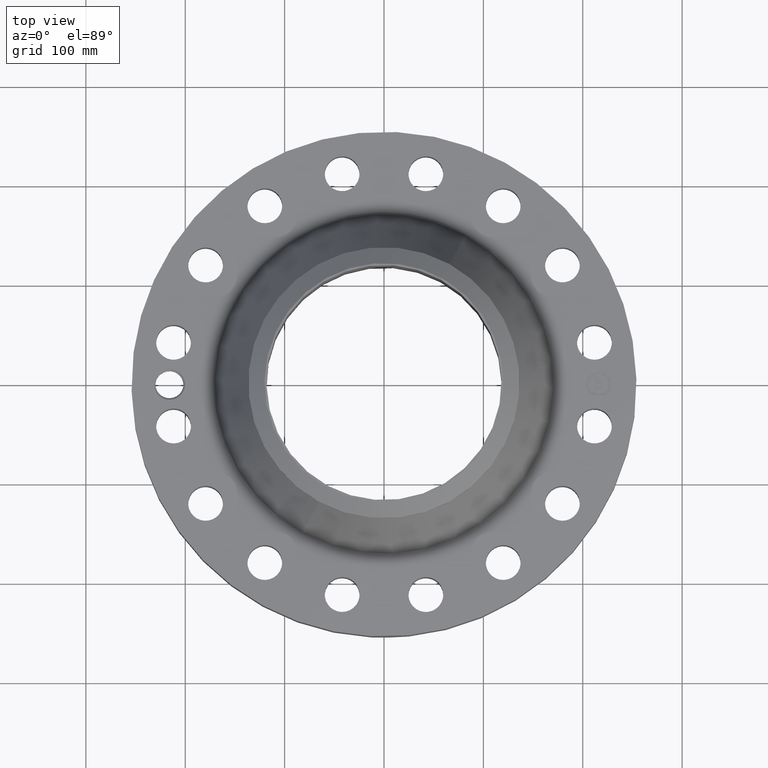
[diagram: clean part render]
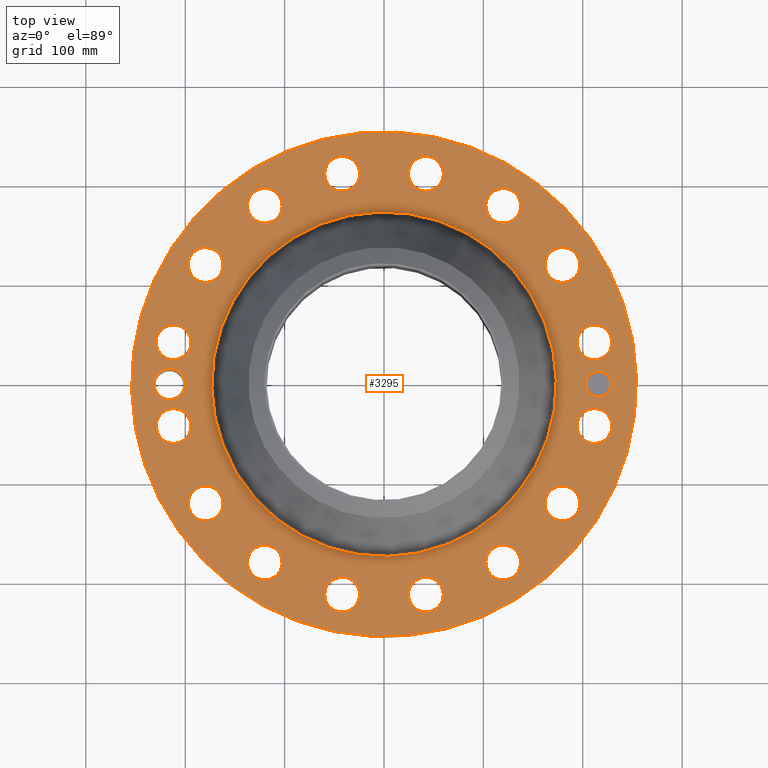
[diagram: same view with one face highlighted and labeled with its STEP entity id]
A machine part, top view. The second image highlights one B-rep face of the part: STEP entity #3295.
In plain terms, the highlighted planar face has unit normal (0, 0, -1).
Its self-contained STEP definition (entity closure, byte-faithful):
#2190=AXIS2_PLACEMENT_3D('Circle Axis2P3D',#2188,#2189,$) ;
#2216=AXIS2_PLACEMENT_3D('Circle Axis2P3D',#2214,#2215,$) ;
#2914=AXIS2_PLACEMENT_3D('Plane Axis2P3D',#2911,#2912,#2913) ;
#2918=AXIS2_PLACEMENT_3D('Circle Axis2P3D',#2916,#2917,$) ;
#2927=AXIS2_PLACEMENT_3D('Circle Axis2P3D',#2925,#2926,$) ;
#2961=AXIS2_PLACEMENT_3D('Circle Axis2P3D',#2959,#2960,$) ;
#2968=AXIS2_PLACEMENT_3D('Circle Axis2P3D',#2966,#2967,$) ;
#2975=AXIS2_PLACEMENT_3D('Circle Axis2P3D',#2973,#2974,$) ;
#2987=AXIS2_PLACEMENT_3D('Circle Axis2P3D',#2985,#2986,$) ;
#2996=AXIS2_PLACEMENT_3D('Circle Axis2P3D',#2994,#2995,$) ;
#3009=AXIS2_PLACEMENT_3D('Circle Axis2P3D',#3007,#3008,$) ;
#3018=AXIS2_PLACEMENT_3D('Circle Axis2P3D',#3016,#3017,$) ;
#3027=AXIS2_PLACEMENT_3D('Circle Axis2P3D',#3025,#3026,$) ;
#3036=AXIS2_PLACEMENT_3D('Circle Axis2P3D',#3034,#3035,$) ;
#3045=AXIS2_PLACEMENT_3D('Circle Axis2P3D',#3043,#3044,$) ;
#3054=AXIS2_PLACEMENT_3D('Circle Axis2P3D',#3052,#3053,$) ;
#3063=AXIS2_PLACEMENT_3D('Circle Axis2P3D',#3061,#3062,$) ;
#3072=AXIS2_PLACEMENT_3D('Circle Axis2P3D',#3070,#3071,$) ;
#3081=AXIS2_PLACEMENT_3D('Circle Axis2P3D',#3079,#3080,$) ;
#3090=AXIS2_PLACEMENT_3D('Circle Axis2P3D',#3088,#3089,$) ;
#3099=AXIS2_PLACEMENT_3D('Circle Axis2P3D',#3097,#3098,$) ;
#3108=AXIS2_PLACEMENT_3D('Circle Axis2P3D',#3106,#3107,$) ;
#3117=AXIS2_PLACEMENT_3D('Circle Axis2P3D',#3115,#3116,$) ;
#3126=AXIS2_PLACEMENT_3D('Circle Axis2P3D',#3124,#3125,$) ;
#3135=AXIS2_PLACEMENT_3D('Circle Axis2P3D',#3133,#3134,$) ;
#3144=AXIS2_PLACEMENT_3D('Circle Axis2P3D',#3142,#3143,$) ;
#3153=AXIS2_PLACEMENT_3D('Circle Axis2P3D',#3151,#3152,$) ;
#3162=AXIS2_PLACEMENT_3D('Circle Axis2P3D',#3160,#3161,$) ;
#3171=AXIS2_PLACEMENT_3D('Circle Axis2P3D',#3169,#3170,$) ;
#3180=AXIS2_PLACEMENT_3D('Circle Axis2P3D',#3178,#3179,$) ;
#3189=AXIS2_PLACEMENT_3D('Circle Axis2P3D',#3187,#3188,$) ;
#3198=AXIS2_PLACEMENT_3D('Circle Axis2P3D',#3196,#3197,$) ;
#3207=AXIS2_PLACEMENT_3D('Circle Axis2P3D',#3205,#3206,$) ;
#3216=AXIS2_PLACEMENT_3D('Circle Axis2P3D',#3214,#3215,$) ;
#3225=AXIS2_PLACEMENT_3D('Circle Axis2P3D',#3223,#3224,$) ;
#3234=AXIS2_PLACEMENT_3D('Circle Axis2P3D',#3232,#3233,$) ;
#3243=AXIS2_PLACEMENT_3D('Circle Axis2P3D',#3241,#3242,$) ;
#3252=AXIS2_PLACEMENT_3D('Circle Axis2P3D',#3250,#3251,$) ;
#3261=AXIS2_PLACEMENT_3D('Circle Axis2P3D',#3259,#3260,$) ;
#3270=AXIS2_PLACEMENT_3D('Circle Axis2P3D',#3268,#3269,$) ;
#3279=AXIS2_PLACEMENT_3D('Circle Axis2P3D',#3277,#3278,$) ;
#3288=AXIS2_PLACEMENT_3D('Circle Axis2P3D',#3286,#3287,$) ;
#2188=CARTESIAN_POINT('Axis2P3D Location',(0.,0.,2.81200000001)) ;
#2192=CARTESIAN_POINT('Vertex',(-3.27180787105,-5.98900413576,2.81200000001)) ;
#2194=CARTESIAN_POINT('Vertex',(3.27180787105,5.98900413576,2.81200000001)) ;
#2214=CARTESIAN_POINT('Axis2P3D Location',(0.,0.,2.81200000001)) ;
#2911=CARTESIAN_POINT('Axis2P3D Location',(0.,10.,2.81200000001)) ;
#2916=CARTESIAN_POINT('Axis2P3D Location',(0.,0.,2.81200000001)) ;
#2920=CARTESIAN_POINT('Vertex',(4.79425538606,8.77582561894,2.81200000001)) ;
#2922=CARTESIAN_POINT('Vertex',(-4.79425538606,-8.77582561894,2.81200000001)) ;
#2925=CARTESIAN_POINT('Axis2P3D Location',(0.,0.,2.81200000001)) ;
#2935=CARTESIAN_POINT('Control Point',(-7.87500000003,-2.23792987641E-015,2.81200000001)) ;
#2936=CARTESIAN_POINT('Control Point',(-7.87705142206,0.0564511916744,2.81200000001)) ;
#2937=CARTESIAN_POINT('Control Point',(-7.88548073713,0.112561665312,2.81200000001)) ;
#2938=CARTESIAN_POINT('Control Point',(-7.90023974409,0.167363689735,2.81200000001)) ;
#2939=CARTESIAN_POINT('Control Point',(-7.92105024013,0.219899015889,2.81200000001)) ;
#2940=CARTESIAN_POINT('Control Point',(-7.94744116736,0.269322903656,2.81200000001)) ;
#2941=CARTESIAN_POINT('Vertex',(-7.87500000003,-2.23792987641E-015,2.81200000001)) ;
#2943=CARTESIAN_POINT('Vertex',(-7.94744116736,0.269322903656,2.81200000001)) ;
#2947=CARTESIAN_POINT('Control Point',(-7.87500000003,0.,2.81200000001)) ;
#2948=CARTESIAN_POINT('Control Point',(-7.87686305304,-0.0512676382887,2.81200000001)) ;
#2949=CARTESIAN_POINT('Control Point',(-7.88398649529,-0.102254257092,2.81200000001)) ;
#2950=CARTESIAN_POINT('Control Point',(-7.89632550794,-0.152217010295,2.81200000001)) ;
#2951=CARTESIAN_POINT('Control Point',(-7.91547871316,-0.205418678964,2.81200000001)) ;
#2952=CARTESIAN_POINT('Control Point',(-7.94033938268,-0.255718142581,2.81200000001)) ;
#2953=CARTESIAN_POINT('Control Point',(-7.94271623005,-0.260400516291,2.81200000001)) ;
#2954=CARTESIAN_POINT('Control Point',(-7.94514234926,-0.265056053159,2.81200000001)) ;
#2955=CARTESIAN_POINT('Control Point',(-7.9476173462,-0.269684062842,2.81200000001)) ;
#2956=CARTESIAN_POINT('Vertex',(-7.9476173462,-0.269684062842,2.81200000001)) ;
#2959=CARTESIAN_POINT('Axis2P3D Location',(-8.50000000003,1.1189649382E-015,2.81200000001)) ;
#2963=CARTESIAN_POINT('Vertex',(-7.96054999924,-0.294702878581,2.81200000001)) ;
#2966=CARTESIAN_POINT('Axis2P3D Location',(-8.50000000003,1.1189649382E-015,2.81200000001)) ;
#2970=CARTESIAN_POINT('Vertex',(-9.03945000083,0.294702878581,2.81200000001)) ;
#2973=CARTESIAN_POINT('Axis2P3D Location',(-8.50000000003,1.1189649382E-015,2.81200000001)) ;
#2985=CARTESIAN_POINT('Axis2P3D Location',(8.33667488346,-1.65826773714,2.81200000001)) ;
#2989=CARTESIAN_POINT('Vertex',(7.73114291575,-1.32746411551,2.81200000001)) ;
#2991=CARTESIAN_POINT('Vertex',(8.94220685117,-1.98907135878,2.81200000001)) ;
#2994=CARTESIAN_POINT('Axis2P3D Location',(8.33667488346,-1.65826773714,2.81200000001)) ;
#3007=CARTESIAN_POINT('Axis2P3D Location',(7.0674917046,-4.72234698069,2.81200000001)) ;
#3011=CARTESIAN_POINT('Vertex',(7.50033723048,-5.25969672781,2.81200000001)) ;
#3013=CARTESIAN_POINT('Vertex',(6.63464617872,-4.18499723356,2.81200000001)) ;
#3016=CARTESIAN_POINT('Axis2P3D Location',(7.0674917046,-4.72234698069,2.81200000001)) ;
#3025=CARTESIAN_POINT('Axis2P3D Location',(4.72234698069,-7.0674917046,2.81200000001)) ;
#3029=CARTESIAN_POINT('Vertex',(4.91660925717,-7.72958094929,2.81200000001)) ;
#3031=CARTESIAN_POINT('Vertex',(4.5280847042,-6.40540245991,2.81200000001)) ;
#3034=CARTESIAN_POINT('Axis2P3D Location',(4.72234698069,-7.0674917046,2.81200000001)) ;
#3043=CARTESIAN_POINT('Axis2P3D Location',(1.65826773714,-8.33667488346,2.81200000001)) ;
#3047=CARTESIAN_POINT('Vertex',(1.58437209364,-9.02270654007,2.81200000001)) ;
#3049=CARTESIAN_POINT('Vertex',(1.73216338065,-7.65064322685,2.81200000001)) ;
#3052=CARTESIAN_POINT('Axis2P3D Location',(1.65826773714,-8.33667488346,2.81200000001)) ;
#3061=CARTESIAN_POINT('Axis2P3D Location',(-1.65826773714,-8.33667488346,2.81200000001)) ;
#3065=CARTESIAN_POINT('Vertex',(-1.98907135878,-8.94220685117,2.81200000001)) ;
#3067=CARTESIAN_POINT('Vertex',(-1.32746411551,-7.73114291575,2.81200000001)) ;
#3070=CARTESIAN_POINT('Axis2P3D Location',(-1.65826773714,-8.33667488346,2.81200000001)) ;
#3079=CARTESIAN_POINT('Axis2P3D Location',(-4.72234698069,-7.0674917046,2.81200000001)) ;
#3083=CARTESIAN_POINT('Vertex',(-5.25969672781,-7.50033723048,2.81200000001)) ;
#3085=CARTESIAN_POINT('Vertex',(-4.18499723356,-6.63464617872,2.81200000001)) ;
#3088=CARTESIAN_POINT('Axis2P3D Location',(-4.72234698069,-7.0674917046,2.81200000001)) ;
#3097=CARTESIAN_POINT('Axis2P3D Location',(-7.0674917046,-4.72234698069,2.81200000001)) ;
#3101=CARTESIAN_POINT('Vertex',(-7.72958094929,-4.91660925717,2.81200000001)) ;
#3103=CARTESIAN_POINT('Vertex',(-6.40540245991,-4.5280847042,2.81200000001)) ;
#3106=CARTESIAN_POINT('Axis2P3D Location',(-7.0674917046,-4.72234698069,2.81200000001)) ;
#3115=CARTESIAN_POINT('Axis2P3D Location',(-8.33667488346,-1.65826773714,2.81200000001)) ;
#3119=CARTESIAN_POINT('Vertex',(-9.02270654007,-1.58437209364,2.81200000001)) ;
#3121=CARTESIAN_POINT('Vertex',(-7.65064322685,-1.73216338065,2.81200000001)) ;
#3124=CARTESIAN_POINT('Axis2P3D Location',(-8.33667488346,-1.65826773714,2.81200000001)) ;
#3133=CARTESIAN_POINT('Axis2P3D Location',(-8.33667488346,1.65826773714,2.81200000001)) ;
#3137=CARTESIAN_POINT('Vertex',(-8.94220685117,1.98907135878,2.81200000001)) ;
#3139=CARTESIAN_POINT('Vertex',(-7.73114291575,1.32746411551,2.81200000001)) ;
#3142=CARTESIAN_POINT('Axis2P3D Location',(-8.33667488346,1.65826773714,2.81200000001)) ;
#3151=CARTESIAN_POINT('Axis2P3D Location',(-7.0674917046,4.72234698069,2.81200000001)) ;
#3155=CARTESIAN_POINT('Vertex',(-7.50033723048,5.25969672781,2.81200000001)) ;
#3157=CARTESIAN_POINT('Vertex',(-6.63464617872,4.18499723356,2.81200000001)) ;
#3160=CARTESIAN_POINT('Axis2P3D Location',(-7.0674917046,4.72234698069,2.81200000001)) ;
#3169=CARTESIAN_POINT('Axis2P3D Location',(-4.72234698069,7.0674917046,2.81200000001)) ;
#3173=CARTESIAN_POINT('Vertex',(-4.91660925717,7.72958094929,2.81200000001)) ;
#3175=CARTESIAN_POINT('Vertex',(-4.5280847042,6.40540245991,2.81200000001)) ;
#3178=CARTESIAN_POINT('Axis2P3D Location',(-4.72234698069,7.0674917046,2.81200000001)) ;
#3187=CARTESIAN_POINT('Axis2P3D Location',(-1.65826773714,8.33667488346,2.81200000001)) ;
#3191=CARTESIAN_POINT('Vertex',(-1.58437209364,9.02270654007,2.81200000001)) ;
#3193=CARTESIAN_POINT('Vertex',(-1.73216338065,7.65064322685,2.81200000001)) ;
#3196=CARTESIAN_POINT('Axis2P3D Location',(-1.65826773714,8.33667488346,2.81200000001)) ;
#3205=CARTESIAN_POINT('Axis2P3D Location',(1.65826773714,8.33667488346,2.81200000001)) ;
#3209=CARTESIAN_POINT('Vertex',(1.98907135878,8.94220685117,2.81200000001)) ;
#3211=CARTESIAN_POINT('Vertex',(1.32746411551,7.73114291575,2.81200000001)) ;
#3214=CARTESIAN_POINT('Axis2P3D Location',(1.65826773714,8.33667488346,2.81200000001)) ;
#3223=CARTESIAN_POINT('Axis2P3D Location',(4.72234698069,7.0674917046,2.81200000001)) ;
#3227=CARTESIAN_POINT('Vertex',(5.25969672781,7.50033723048,2.81200000001)) ;
#3229=CARTESIAN_POINT('Vertex',(4.18499723356,6.63464617872,2.81200000001)) ;
#3232=CARTESIAN_POINT('Axis2P3D Location',(4.72234698069,7.0674917046,2.81200000001)) ;
#3241=CARTESIAN_POINT('Axis2P3D Location',(7.0674917046,4.72234698069,2.81200000001)) ;
#3245=CARTESIAN_POINT('Vertex',(7.72958094929,4.91660925717,2.81200000001)) ;
#3247=CARTESIAN_POINT('Vertex',(6.40540245991,4.5280847042,2.81200000001)) ;
#3250=CARTESIAN_POINT('Axis2P3D Location',(7.0674917046,4.72234698069,2.81200000001)) ;
#3259=CARTESIAN_POINT('Axis2P3D Location',(8.33667488346,1.65826773714,2.81200000001)) ;
#3263=CARTESIAN_POINT('Vertex',(9.02270654007,1.58437209364,2.81200000001)) ;
#3265=CARTESIAN_POINT('Vertex',(7.65064322685,1.73216338065,2.81200000001)) ;
#3268=CARTESIAN_POINT('Axis2P3D Location',(8.33667488346,1.65826773714,2.81200000001)) ;
#3277=CARTESIAN_POINT('Axis2P3D Location',(8.50000000003,0.,2.81200000001)) ;
#3281=CARTESIAN_POINT('Vertex',(8.50000000003,0.499999995002,2.81200000001)) ;
#3283=CARTESIAN_POINT('Vertex',(8.50000000003,-0.499999995002,2.81200000001)) ;
#3286=CARTESIAN_POINT('Axis2P3D Location',(8.50000000003,0.,2.81200000001)) ;
#2189=DIRECTION('Axis2P3D Direction',(0.,0.,-0.0393700787402)) ;
#2215=DIRECTION('Axis2P3D Direction',(0.,0.,-0.0393700787402)) ;
#2912=DIRECTION('Axis2P3D Direction',(0.,0.,-0.0393700787402)) ;
#2913=DIRECTION('Axis2P3D XDirection',(0.0393700787402,0.,0.)) ;
#2917=DIRECTION('Axis2P3D Direction',(0.,0.,-0.0393700787402)) ;
#2926=DIRECTION('Axis2P3D Direction',(0.,0.,-0.0393700787402)) ;
#2960=DIRECTION('Axis2P3D Direction',(0.,0.,-0.0393700787402)) ;
#2967=DIRECTION('Axis2P3D Direction',(0.,0.,-0.0393700787402)) ;
#2974=DIRECTION('Axis2P3D Direction',(0.,0.,-0.0393700787402)) ;
#2986=DIRECTION('Axis2P3D Direction',(0.,0.,-0.0393700787402)) ;
#2995=DIRECTION('Axis2P3D Direction',(0.,0.,-0.0393700787402)) ;
#3008=DIRECTION('Axis2P3D Direction',(0.,0.,-0.0393700787402)) ;
#3017=DIRECTION('Axis2P3D Direction',(0.,0.,-0.0393700787402)) ;
#3026=DIRECTION('Axis2P3D Direction',(0.,0.,-0.0393700787402)) ;
#3035=DIRECTION('Axis2P3D Direction',(0.,0.,-0.0393700787402)) ;
#3044=DIRECTION('Axis2P3D Direction',(0.,0.,-0.0393700787402)) ;
#3053=DIRECTION('Axis2P3D Direction',(0.,0.,-0.0393700787402)) ;
#3062=DIRECTION('Axis2P3D Direction',(0.,0.,-0.0393700787402)) ;
#3071=DIRECTION('Axis2P3D Direction',(0.,0.,-0.0393700787402)) ;
#3080=DIRECTION('Axis2P3D Direction',(0.,0.,-0.0393700787402)) ;
#3089=DIRECTION('Axis2P3D Direction',(0.,0.,-0.0393700787402)) ;
#3098=DIRECTION('Axis2P3D Direction',(0.,0.,-0.0393700787402)) ;
#3107=DIRECTION('Axis2P3D Direction',(0.,0.,-0.0393700787402)) ;
#3116=DIRECTION('Axis2P3D Direction',(0.,0.,-0.0393700787402)) ;
#3125=DIRECTION('Axis2P3D Direction',(0.,0.,-0.0393700787402)) ;
#3134=DIRECTION('Axis2P3D Direction',(0.,0.,-0.0393700787402)) ;
#3143=DIRECTION('Axis2P3D Direction',(0.,0.,-0.0393700787402)) ;
#3152=DIRECTION('Axis2P3D Direction',(0.,0.,-0.0393700787402)) ;
#3161=DIRECTION('Axis2P3D Direction',(0.,0.,-0.0393700787402)) ;
#3170=DIRECTION('Axis2P3D Direction',(0.,0.,-0.0393700787402)) ;
#3179=DIRECTION('Axis2P3D Direction',(0.,0.,-0.0393700787402)) ;
#3188=DIRECTION('Axis2P3D Direction',(0.,0.,-0.0393700787402)) ;
#3197=DIRECTION('Axis2P3D Direction',(0.,0.,-0.0393700787402)) ;
#3206=DIRECTION('Axis2P3D Direction',(0.,0.,-0.0393700787402)) ;
#3215=DIRECTION('Axis2P3D Direction',(0.,0.,-0.0393700787402)) ;
#3224=DIRECTION('Axis2P3D Direction',(0.,0.,-0.0393700787402)) ;
#3233=DIRECTION('Axis2P3D Direction',(0.,0.,-0.0393700787402)) ;
#3242=DIRECTION('Axis2P3D Direction',(0.,0.,-0.0393700787402)) ;
#3251=DIRECTION('Axis2P3D Direction',(0.,0.,-0.0393700787402)) ;
#3260=DIRECTION('Axis2P3D Direction',(0.,0.,-0.0393700787402)) ;
#3269=DIRECTION('Axis2P3D Direction',(0.,0.,-0.0393700787402)) ;
#3278=DIRECTION('Axis2P3D Direction',(0.,0.,-0.0393700787402)) ;
#3287=DIRECTION('Axis2P3D Direction',(0.,0.,-0.0393700787402)) ;
#2931=ORIENTED_EDGE('',*,*,#2924,.F.) ;
#2932=ORIENTED_EDGE('',*,*,#2929,.F.) ;
#2979=ORIENTED_EDGE('',*,*,#2945,.F.) ;
#2980=ORIENTED_EDGE('',*,*,#2958,.T.) ;
#2981=ORIENTED_EDGE('',*,*,#2965,.T.) ;
#2982=ORIENTED_EDGE('',*,*,#2972,.T.) ;
#2983=ORIENTED_EDGE('',*,*,#2977,.T.) ;
#3000=ORIENTED_EDGE('',*,*,#2993,.T.) ;
#3001=ORIENTED_EDGE('',*,*,#2998,.T.) ;
#3004=ORIENTED_EDGE('',*,*,#2196,.T.) ;
#3005=ORIENTED_EDGE('',*,*,#2218,.T.) ;
#3022=ORIENTED_EDGE('',*,*,#3015,.T.) ;
#3023=ORIENTED_EDGE('',*,*,#3020,.T.) ;
#3040=ORIENTED_EDGE('',*,*,#3033,.T.) ;
#3041=ORIENTED_EDGE('',*,*,#3038,.T.) ;
#3058=ORIENTED_EDGE('',*,*,#3051,.T.) ;
#3059=ORIENTED_EDGE('',*,*,#3056,.T.) ;
#3076=ORIENTED_EDGE('',*,*,#3069,.T.) ;
#3077=ORIENTED_EDGE('',*,*,#3074,.T.) ;
#3094=ORIENTED_EDGE('',*,*,#3087,.T.) ;
#3095=ORIENTED_EDGE('',*,*,#3092,.T.) ;
#3112=ORIENTED_EDGE('',*,*,#3105,.T.) ;
#3113=ORIENTED_EDGE('',*,*,#3110,.T.) ;
#3130=ORIENTED_EDGE('',*,*,#3123,.T.) ;
#3131=ORIENTED_EDGE('',*,*,#3128,.T.) ;
#3148=ORIENTED_EDGE('',*,*,#3141,.T.) ;
#3149=ORIENTED_EDGE('',*,*,#3146,.T.) ;
#3166=ORIENTED_EDGE('',*,*,#3159,.T.) ;
#3167=ORIENTED_EDGE('',*,*,#3164,.T.) ;
#3184=ORIENTED_EDGE('',*,*,#3177,.T.) ;
#3185=ORIENTED_EDGE('',*,*,#3182,.T.) ;
#3202=ORIENTED_EDGE('',*,*,#3195,.T.) ;
#3203=ORIENTED_EDGE('',*,*,#3200,.T.) ;
#3220=ORIENTED_EDGE('',*,*,#3213,.T.) ;
#3221=ORIENTED_EDGE('',*,*,#3218,.T.) ;
#3238=ORIENTED_EDGE('',*,*,#3231,.T.) ;
#3239=ORIENTED_EDGE('',*,*,#3236,.T.) ;
#3256=ORIENTED_EDGE('',*,*,#3249,.T.) ;
#3257=ORIENTED_EDGE('',*,*,#3254,.T.) ;
#3274=ORIENTED_EDGE('',*,*,#3267,.T.) ;
#3275=ORIENTED_EDGE('',*,*,#3272,.T.) ;
#3292=ORIENTED_EDGE('',*,*,#3285,.T.) ;
#3293=ORIENTED_EDGE('',*,*,#3290,.T.) ;
#2984=FACE_BOUND('',#2978,.T.) ;
#3002=FACE_BOUND('',#2999,.T.) ;
#3006=FACE_BOUND('',#3003,.T.) ;
#3024=FACE_BOUND('',#3021,.T.) ;
#3042=FACE_BOUND('',#3039,.T.) ;
#3060=FACE_BOUND('',#3057,.T.) ;
#3078=FACE_BOUND('',#3075,.T.) ;
#3096=FACE_BOUND('',#3093,.T.) ;
#3114=FACE_BOUND('',#3111,.T.) ;
#3132=FACE_BOUND('',#3129,.T.) ;
#3150=FACE_BOUND('',#3147,.T.) ;
#3168=FACE_BOUND('',#3165,.T.) ;
#3186=FACE_BOUND('',#3183,.T.) ;
#3204=FACE_BOUND('',#3201,.T.) ;
#3222=FACE_BOUND('',#3219,.T.) ;
#3240=FACE_BOUND('',#3237,.T.) ;
#3258=FACE_BOUND('',#3255,.T.) ;
#3276=FACE_BOUND('',#3273,.T.) ;
#3294=FACE_BOUND('',#3291,.T.) ;
#3295=ADVANCED_FACE('PartBody',(#2933,#2984,#3002,#3006,#3024,#3042,#3060,#3078,#3096,#3114,#3132,#3150,#3168,#3186,#3204,#3222,#3240,#3258,#3276,#3294),#2915,.F.) ;
#2934=B_SPLINE_CURVE_WITH_KNOTS('',5,(#2935,#2936,#2937,#2938,#2939,#2940),.UNSPECIFIED.,.F.,.U.,(6,6),(0.,9.86970913285),.UNSPECIFIED.) ;
#2946=B_SPLINE_CURVE_WITH_KNOTS('',5,(#2947,#2948,#2949,#2950,#2951,#2952,#2953,#2954,#2955),.UNSPECIFIED.,.F.,.U.,(6,3,6),(0.,8.96343660477,9.88915639703),.UNSPECIFIED.) ;
#2191=CIRCLE('generated circle',#2190,6.82443384342) ;
#2217=CIRCLE('generated circle',#2216,6.82443384342) ;
#2919=CIRCLE('generated circle',#2918,10.) ;
#2928=CIRCLE('generated circle',#2927,10.) ;
#2962=CIRCLE('generated circle',#2961,0.614700000002) ;
#2969=CIRCLE('generated circle',#2968,0.614700000002) ;
#2976=CIRCLE('generated circle',#2975,0.614700000002) ;
#2988=CIRCLE('generated circle',#2987,0.690000000003) ;
#2997=CIRCLE('generated circle',#2996,0.690000000003) ;
#3010=CIRCLE('generated circle',#3009,0.690000000003) ;
#3019=CIRCLE('generated circle',#3018,0.690000000003) ;
#3028=CIRCLE('generated circle',#3027,0.690000000003) ;
#3037=CIRCLE('generated circle',#3036,0.690000000003) ;
#3046=CIRCLE('generated circle',#3045,0.690000000003) ;
#3055=CIRCLE('generated circle',#3054,0.690000000003) ;
#3064=CIRCLE('generated circle',#3063,0.690000000003) ;
#3073=CIRCLE('generated circle',#3072,0.690000000003) ;
#3082=CIRCLE('generated circle',#3081,0.690000000003) ;
#3091=CIRCLE('generated circle',#3090,0.690000000003) ;
#3100=CIRCLE('generated circle',#3099,0.690000000003) ;
#3109=CIRCLE('generated circle',#3108,0.690000000003) ;
#3118=CIRCLE('generated circle',#3117,0.690000000003) ;
#3127=CIRCLE('generated circle',#3126,0.690000000003) ;
#3136=CIRCLE('generated circle',#3135,0.690000000003) ;
#3145=CIRCLE('generated circle',#3144,0.690000000003) ;
#3154=CIRCLE('generated circle',#3153,0.690000000003) ;
#3163=CIRCLE('generated circle',#3162,0.690000000003) ;
#3172=CIRCLE('generated circle',#3171,0.690000000003) ;
#3181=CIRCLE('generated circle',#3180,0.690000000003) ;
#3190=CIRCLE('generated circle',#3189,0.690000000003) ;
#3199=CIRCLE('generated circle',#3198,0.690000000003) ;
#3208=CIRCLE('generated circle',#3207,0.690000000003) ;
#3217=CIRCLE('generated circle',#3216,0.690000000003) ;
#3226=CIRCLE('generated circle',#3225,0.690000000003) ;
#3235=CIRCLE('generated circle',#3234,0.690000000003) ;
#3244=CIRCLE('generated circle',#3243,0.690000000003) ;
#3253=CIRCLE('generated circle',#3252,0.690000000003) ;
#3262=CIRCLE('generated circle',#3261,0.690000000003) ;
#3271=CIRCLE('generated circle',#3270,0.690000000003) ;
#3280=CIRCLE('generated circle',#3279,0.499999995002) ;
#3289=CIRCLE('generated circle',#3288,0.499999995002) ;
#2196=EDGE_CURVE('',#2193,#2195,#2191,.T.) ;
#2218=EDGE_CURVE('',#2195,#2193,#2217,.T.) ;
#2924=EDGE_CURVE('',#2921,#2923,#2919,.T.) ;
#2929=EDGE_CURVE('',#2923,#2921,#2928,.T.) ;
#2945=EDGE_CURVE('',#2942,#2944,#2934,.T.) ;
#2958=EDGE_CURVE('',#2942,#2957,#2946,.T.) ;
#2965=EDGE_CURVE('',#2957,#2964,#2962,.T.) ;
#2972=EDGE_CURVE('',#2964,#2971,#2969,.T.) ;
#2977=EDGE_CURVE('',#2971,#2944,#2976,.T.) ;
#2993=EDGE_CURVE('',#2990,#2992,#2988,.T.) ;
#2998=EDGE_CURVE('',#2992,#2990,#2997,.T.) ;
#3015=EDGE_CURVE('',#3012,#3014,#3010,.T.) ;
#3020=EDGE_CURVE('',#3014,#3012,#3019,.T.) ;
#3033=EDGE_CURVE('',#3030,#3032,#3028,.T.) ;
#3038=EDGE_CURVE('',#3032,#3030,#3037,.T.) ;
#3051=EDGE_CURVE('',#3048,#3050,#3046,.T.) ;
#3056=EDGE_CURVE('',#3050,#3048,#3055,.T.) ;
#3069=EDGE_CURVE('',#3066,#3068,#3064,.T.) ;
#3074=EDGE_CURVE('',#3068,#3066,#3073,.T.) ;
#3087=EDGE_CURVE('',#3084,#3086,#3082,.T.) ;
#3092=EDGE_CURVE('',#3086,#3084,#3091,.T.) ;
#3105=EDGE_CURVE('',#3102,#3104,#3100,.T.) ;
#3110=EDGE_CURVE('',#3104,#3102,#3109,.T.) ;
#3123=EDGE_CURVE('',#3120,#3122,#3118,.T.) ;
#3128=EDGE_CURVE('',#3122,#3120,#3127,.T.) ;
#3141=EDGE_CURVE('',#3138,#3140,#3136,.T.) ;
#3146=EDGE_CURVE('',#3140,#3138,#3145,.T.) ;
#3159=EDGE_CURVE('',#3156,#3158,#3154,.T.) ;
#3164=EDGE_CURVE('',#3158,#3156,#3163,.T.) ;
#3177=EDGE_CURVE('',#3174,#3176,#3172,.T.) ;
#3182=EDGE_CURVE('',#3176,#3174,#3181,.T.) ;
#3195=EDGE_CURVE('',#3192,#3194,#3190,.T.) ;
#3200=EDGE_CURVE('',#3194,#3192,#3199,.T.) ;
#3213=EDGE_CURVE('',#3210,#3212,#3208,.T.) ;
#3218=EDGE_CURVE('',#3212,#3210,#3217,.T.) ;
#3231=EDGE_CURVE('',#3228,#3230,#3226,.T.) ;
#3236=EDGE_CURVE('',#3230,#3228,#3235,.T.) ;
#3249=EDGE_CURVE('',#3246,#3248,#3244,.T.) ;
#3254=EDGE_CURVE('',#3248,#3246,#3253,.T.) ;
#3267=EDGE_CURVE('',#3264,#3266,#3262,.T.) ;
#3272=EDGE_CURVE('',#3266,#3264,#3271,.T.) ;
#3285=EDGE_CURVE('',#3282,#3284,#3280,.T.) ;
#3290=EDGE_CURVE('',#3284,#3282,#3289,.T.) ;
#2930=EDGE_LOOP('',(#2931,#2932)) ;
#2978=EDGE_LOOP('',(#2979,#2980,#2981,#2982,#2983)) ;
#2999=EDGE_LOOP('',(#3000,#3001)) ;
#3003=EDGE_LOOP('',(#3004,#3005)) ;
#3021=EDGE_LOOP('',(#3022,#3023)) ;
#3039=EDGE_LOOP('',(#3040,#3041)) ;
#3057=EDGE_LOOP('',(#3058,#3059)) ;
#3075=EDGE_LOOP('',(#3076,#3077)) ;
#3093=EDGE_LOOP('',(#3094,#3095)) ;
#3111=EDGE_LOOP('',(#3112,#3113)) ;
#3129=EDGE_LOOP('',(#3130,#3131)) ;
#3147=EDGE_LOOP('',(#3148,#3149)) ;
#3165=EDGE_LOOP('',(#3166,#3167)) ;
#3183=EDGE_LOOP('',(#3184,#3185)) ;
#3201=EDGE_LOOP('',(#3202,#3203)) ;
#3219=EDGE_LOOP('',(#3220,#3221)) ;
#3237=EDGE_LOOP('',(#3238,#3239)) ;
#3255=EDGE_LOOP('',(#3256,#3257)) ;
#3273=EDGE_LOOP('',(#3274,#3275)) ;
#3291=EDGE_LOOP('',(#3292,#3293)) ;
#2933=FACE_OUTER_BOUND('',#2930,.T.) ;
#2915=PLANE('',#2914) ;
#2193=VERTEX_POINT('',#2192) ;
#2195=VERTEX_POINT('',#2194) ;
#2921=VERTEX_POINT('',#2920) ;
#2923=VERTEX_POINT('',#2922) ;
#2942=VERTEX_POINT('',#2941) ;
#2944=VERTEX_POINT('',#2943) ;
#2957=VERTEX_POINT('',#2956) ;
#2964=VERTEX_POINT('',#2963) ;
#2971=VERTEX_POINT('',#2970) ;
#2990=VERTEX_POINT('',#2989) ;
#2992=VERTEX_POINT('',#2991) ;
#3012=VERTEX_POINT('',#3011) ;
#3014=VERTEX_POINT('',#3013) ;
#3030=VERTEX_POINT('',#3029) ;
#3032=VERTEX_POINT('',#3031) ;
#3048=VERTEX_POINT('',#3047) ;
#3050=VERTEX_POINT('',#3049) ;
#3066=VERTEX_POINT('',#3065) ;
#3068=VERTEX_POINT('',#3067) ;
#3084=VERTEX_POINT('',#3083) ;
#3086=VERTEX_POINT('',#3085) ;
#3102=VERTEX_POINT('',#3101) ;
#3104=VERTEX_POINT('',#3103) ;
#3120=VERTEX_POINT('',#3119) ;
#3122=VERTEX_POINT('',#3121) ;
#3138=VERTEX_POINT('',#3137) ;
#3140=VERTEX_POINT('',#3139) ;
#3156=VERTEX_POINT('',#3155) ;
#3158=VERTEX_POINT('',#3157) ;
#3174=VERTEX_POINT('',#3173) ;
#3176=VERTEX_POINT('',#3175) ;
#3192=VERTEX_POINT('',#3191) ;
#3194=VERTEX_POINT('',#3193) ;
#3210=VERTEX_POINT('',#3209) ;
#3212=VERTEX_POINT('',#3211) ;
#3228=VERTEX_POINT('',#3227) ;
#3230=VERTEX_POINT('',#3229) ;
#3246=VERTEX_POINT('',#3245) ;
#3248=VERTEX_POINT('',#3247) ;
#3264=VERTEX_POINT('',#3263) ;
#3266=VERTEX_POINT('',#3265) ;
#3282=VERTEX_POINT('',#3281) ;
#3284=VERTEX_POINT('',#3283) ;